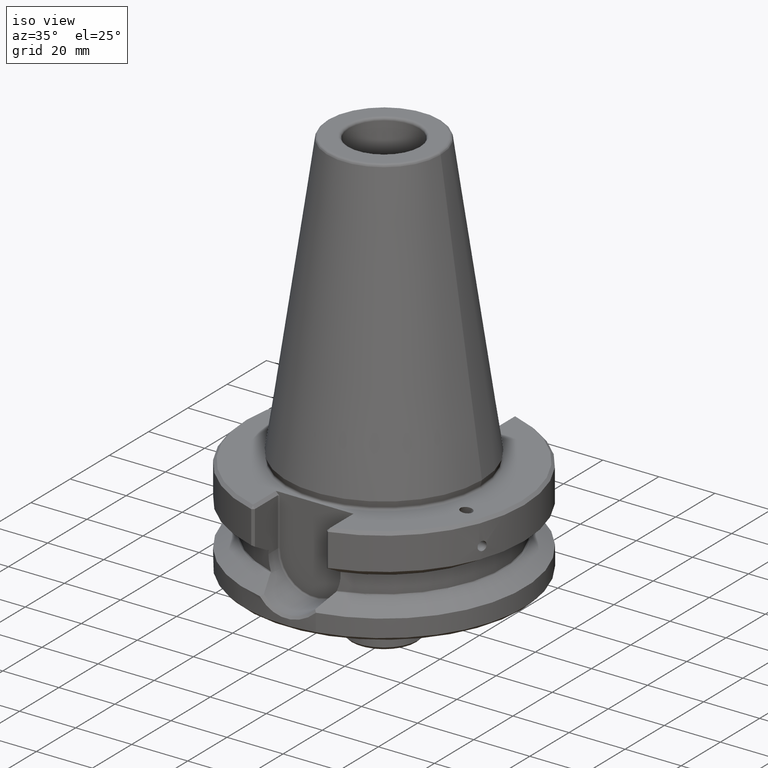
[diagram: clean part render]
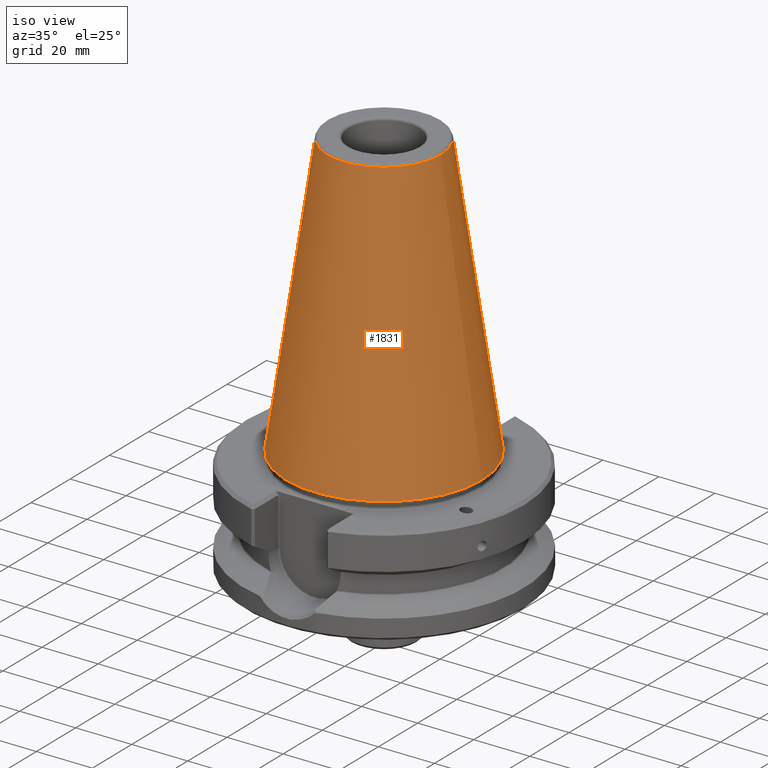
[diagram: same view with one face highlighted and labeled with its STEP entity id]
A machine part, iso view. The second image highlights one B-rep face of the part: STEP entity #1831.
In plain terms, the highlighted conical surface has half-angle 8.297 deg.
Its self-contained STEP definition (entity closure, byte-faithful):
#184=CONICAL_SURFACE('',#1967,20.2040362713219,0.144811713367222);
#527=ORIENTED_EDGE('',*,*,#579,.T.);
#528=ORIENTED_EDGE('',*,*,#720,.F.);
#579=EDGE_CURVE('',#744,#744,#861,.T.);
#720=EDGE_CURVE('',#840,#840,#900,.T.);
#744=VERTEX_POINT('',#2436);
#840=VERTEX_POINT('',#2970);
#861=CIRCLE('',#1866,34.925);
#900=CIRCLE('',#1966,20.2040362713219);
#996=EDGE_LOOP('',(#527));
#997=EDGE_LOOP('',(#528));
#1123=FACE_BOUND('',#996,.T.);
#1124=FACE_BOUND('',#997,.T.);
#1831=ADVANCED_FACE('',(#1123,#1124),#184,.T.);
#1866=AXIS2_PLACEMENT_3D('',#2435,#2021,#2022);
#1966=AXIS2_PLACEMENT_3D('',#2969,#2275,#2276);
#1967=AXIS2_PLACEMENT_3D('',#2971,#2277,#2278);
#2021=DIRECTION('',(0.,0.,1.));
#2022=DIRECTION('',(1.,0.,0.));
#2275=DIRECTION('',(0.,0.,1.));
#2276=DIRECTION('',(1.,0.,0.));
#2277=DIRECTION('',(0.,0.,-1.));
#2278=DIRECTION('',(-1.,0.,0.));
#2435=CARTESIAN_POINT('',(0.,0.,0.));
#2436=CARTESIAN_POINT('',(34.925,0.,0.));
#2969=CARTESIAN_POINT('',(0.,0.,100.944306116415));
#2970=CARTESIAN_POINT('',(20.2040362713219,0.,100.944306116415));
#2971=CARTESIAN_POINT('',(0.,0.,100.944306116415));